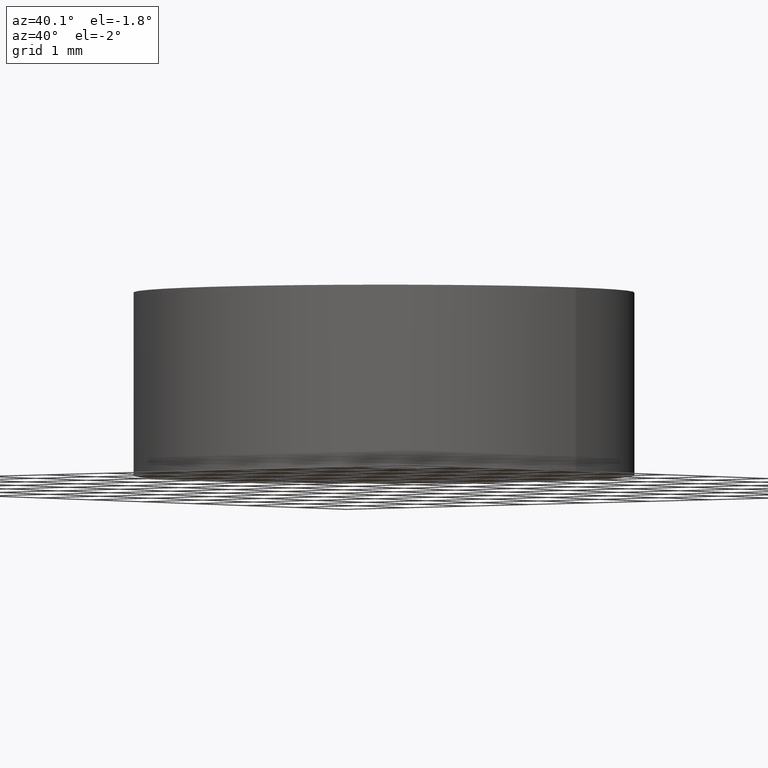
[diagram: clean part render]
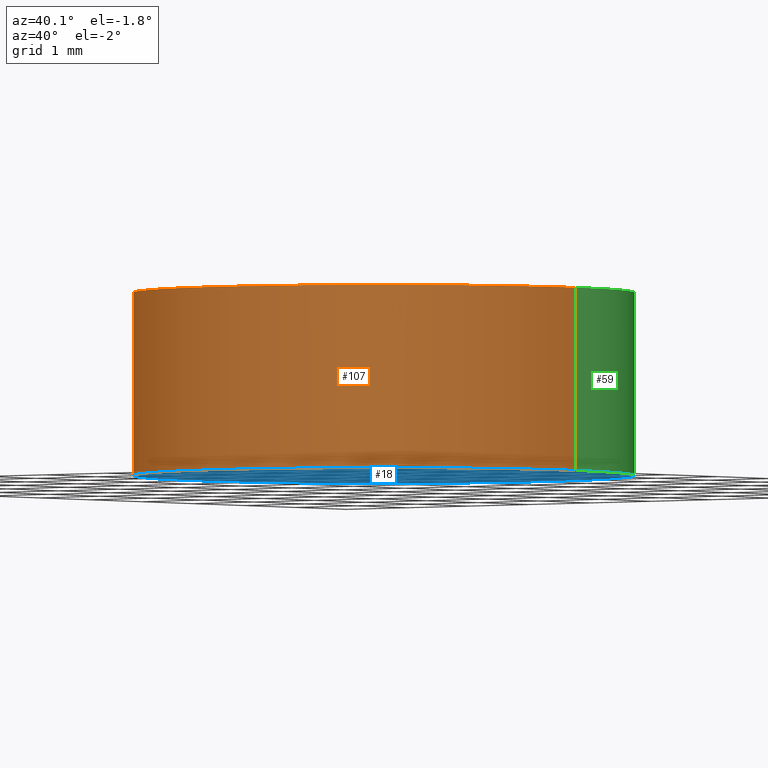
[diagram: same view with three faces highlighted in distinct colors, each labeled with its STEP entity id]
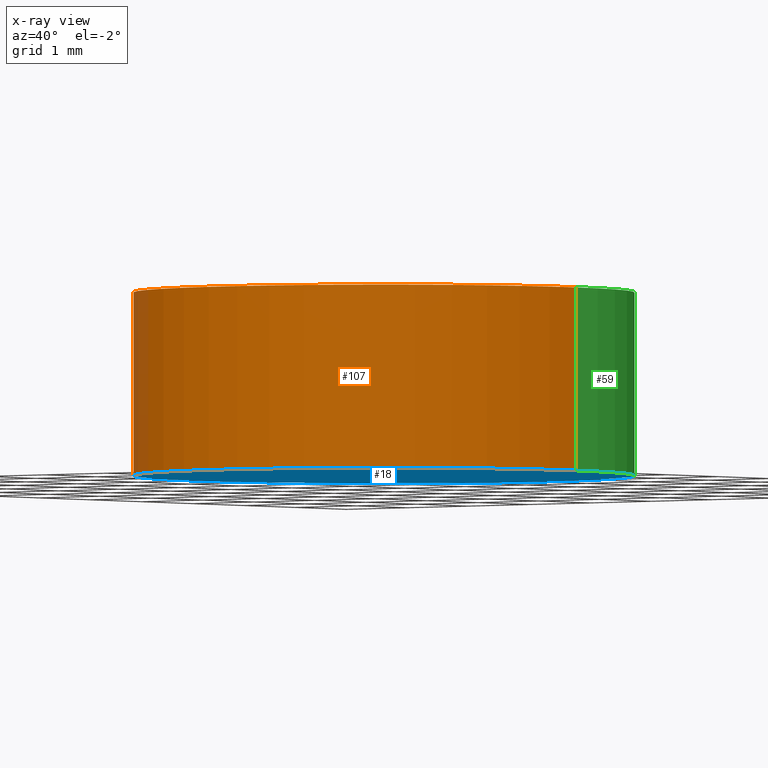
[diagram: x-ray of the same camera — body ghosted, the three highlighted faces saturated]
A machine part, auxiliary view with three faces highlighted in distinct colors.
The next image is the same camera in x-ray (body ghosted, the three faces saturated) — at least one of them is partly hidden behind the body in this view.
Their STEP definitions:

[orange] entity #107 — the highlighted cylindrical surface (partial cylindrical patch) has radius 3.15 mm, axis along (-0, -0, -1).
#1 = VERTEX_POINT ( 'NONE', #2 ) ;
#2 = CARTESIAN_POINT ( 'NONE',  ( 23.39958715517702000, 12.31264836690532000, 0.0000000000000000000 ) ) ;
#3 = DIRECTION ( 'NONE',  ( 1.000000000000000000, 0.0000000000000000000, 0.0000000000000000000 ) ) ;
#4 = DIRECTION ( 'NONE',  ( -1.000000000000000000, 0.0000000000000000000, 0.0000000000000000000 ) ) ;
#6 = FACE_OUTER_BOUND ( 'NONE', #121, .T. ) ;
#12 = EDGE_CURVE ( 'NONE', #27, #1, #74, .T. ) ;
#14 = ORIENTED_EDGE ( 'NONE', *, *, #105, .F. ) ;
#19 = EDGE_CURVE ( 'NONE', #54, #27, #53, .T. ) ;
#21 = DIRECTION ( 'NONE',  ( -0.0000000000000000000, -0.0000000000000000000, -1.000000000000000000 ) ) ;
#26 = CARTESIAN_POINT ( 'NONE',  ( 23.39958715517702000, 12.31264836690532000, 2.299999999999999800 ) ) ;
#27 = VERTEX_POINT ( 'NONE', #131 ) ;
#32 = DIRECTION ( 'NONE',  ( -0.0000000000000000000, -0.0000000000000000000, -1.000000000000000000 ) ) ;
#33 = VECTOR ( 'NONE', #21, 1000.000000000000000 ) ;
#37 = CARTESIAN_POINT ( 'NONE',  ( 20.24958715517702100, 12.31264836690532000, 2.299999999999999800 ) ) ;
#40 = ORIENTED_EDGE ( 'NONE', *, *, #119, .F. ) ;
#42 = CIRCLE ( 'NONE', #128, 3.149999999999999900 ) ;
#43 = AXIS2_PLACEMENT_3D ( 'NONE', #112, #32, #4 ) ;
#46 = CARTESIAN_POINT ( 'NONE',  ( 17.09958715517701900, 12.31264836690532000, 2.299999999999999800 ) ) ;
#53 = LINE ( 'NONE', #46, #111 ) ;
#54 = VERTEX_POINT ( 'NONE', #65 ) ;
#65 = CARTESIAN_POINT ( 'NONE',  ( 17.09958715517701900, 12.31264836690532000, 2.299999999999999800 ) ) ;
#68 = CYLINDRICAL_SURFACE ( 'NONE', #43, 3.149999999999999900 ) ;
#74 = CIRCLE ( 'NONE', #93, 3.149999999999999900 ) ;
#82 = LINE ( 'NONE', #100, #33 ) ;
#86 = CARTESIAN_POINT ( 'NONE',  ( 20.24958715517702100, 12.31264836690532000, 0.0000000000000000000 ) ) ;
#92 = ORIENTED_EDGE ( 'NONE', *, *, #19, .T. ) ;
#93 = AXIS2_PLACEMENT_3D ( 'NONE', #86, #97, #3 ) ;
#97 = DIRECTION ( 'NONE',  ( 0.0000000000000000000, 0.0000000000000000000, 1.000000000000000000 ) ) ;
#100 = CARTESIAN_POINT ( 'NONE',  ( 23.39958715517702000, 12.31264836690532000, 2.299999999999999800 ) ) ;
#105 = EDGE_CURVE ( 'NONE', #129, #1, #82, .T. ) ;
#107 = ADVANCED_FACE ( 'NONE', ( #6 ), #68, .T. ) ;
#110 = DIRECTION ( 'NONE',  ( -0.0000000000000000000, -0.0000000000000000000, -1.000000000000000000 ) ) ;
#111 = VECTOR ( 'NONE', #110, 1000.000000000000000 ) ;
#112 = CARTESIAN_POINT ( 'NONE',  ( 20.24958715517702100, 12.31264836690532000, 2.299999999999999800 ) ) ;
#119 = EDGE_CURVE ( 'NONE', #54, #129, #42, .T. ) ;
#121 = EDGE_LOOP ( 'NONE', ( #14, #40, #92, #140 ) ) ;
#125 = DIRECTION ( 'NONE',  ( 0.0000000000000000000, 0.0000000000000000000, 1.000000000000000000 ) ) ;
#128 = AXIS2_PLACEMENT_3D ( 'NONE', #37, #125, #135 ) ;
#129 = VERTEX_POINT ( 'NONE', #26 ) ;
#131 = CARTESIAN_POINT ( 'NONE',  ( 17.09958715517701900, 12.31264836690532000, 0.0000000000000000000 ) ) ;
#135 = DIRECTION ( 'NONE',  ( 1.000000000000000000, 0.0000000000000000000, 0.0000000000000000000 ) ) ;
#140 = ORIENTED_EDGE ( 'NONE', *, *, #12, .T. ) ;

[blue] entity #18 — the highlighted planar face has unit normal (0, 0, 1).
#1 = VERTEX_POINT ( 'NONE', #2 ) ;
#2 = CARTESIAN_POINT ( 'NONE',  ( 23.39958715517702000, 12.31264836690532000, 0.0000000000000000000 ) ) ;
#3 = DIRECTION ( 'NONE',  ( 1.000000000000000000, 0.0000000000000000000, 0.0000000000000000000 ) ) ;
#10 = FACE_OUTER_BOUND ( 'NONE', #80, .T. ) ;
#11 = PLANE ( 'NONE',  #91 ) ;
#12 = EDGE_CURVE ( 'NONE', #27, #1, #74, .T. ) ;
#18 = ADVANCED_FACE ( 'NONE', ( #10 ), #11, .F. ) ;
#27 = VERTEX_POINT ( 'NONE', #131 ) ;
#35 = AXIS2_PLACEMENT_3D ( 'NONE', #123, #113, #136 ) ;
#64 = CARTESIAN_POINT ( 'NONE',  ( 20.24958715517702100, 12.31264836690532000, 0.0000000000000000000 ) ) ;
#74 = CIRCLE ( 'NONE', #93, 3.149999999999999900 ) ;
#75 = ORIENTED_EDGE ( 'NONE', *, *, #12, .F. ) ;
#80 = EDGE_LOOP ( 'NONE', ( #75, #126 ) ) ;
#85 = DIRECTION ( 'NONE',  ( 1.000000000000000000, 0.0000000000000000000, -0.0000000000000000000 ) ) ;
#86 = CARTESIAN_POINT ( 'NONE',  ( 20.24958715517702100, 12.31264836690532000, 0.0000000000000000000 ) ) ;
#91 = AXIS2_PLACEMENT_3D ( 'NONE', #64, #122, #85 ) ;
#93 = AXIS2_PLACEMENT_3D ( 'NONE', #86, #97, #3 ) ;
#97 = DIRECTION ( 'NONE',  ( 0.0000000000000000000, 0.0000000000000000000, 1.000000000000000000 ) ) ;
#108 = CIRCLE ( 'NONE', #35, 3.149999999999999900 ) ;
#113 = DIRECTION ( 'NONE',  ( 0.0000000000000000000, 0.0000000000000000000, 1.000000000000000000 ) ) ;
#122 = DIRECTION ( 'NONE',  ( 0.0000000000000000000, 0.0000000000000000000, 1.000000000000000000 ) ) ;
#123 = CARTESIAN_POINT ( 'NONE',  ( 20.24958715517702100, 12.31264836690532000, 0.0000000000000000000 ) ) ;
#126 = ORIENTED_EDGE ( 'NONE', *, *, #138, .F. ) ;
#131 = CARTESIAN_POINT ( 'NONE',  ( 17.09958715517701900, 12.31264836690532000, 0.0000000000000000000 ) ) ;
#136 = DIRECTION ( 'NONE',  ( 1.000000000000000000, 0.0000000000000000000, 0.0000000000000000000 ) ) ;
#138 = EDGE_CURVE ( 'NONE', #1, #27, #108, .T. ) ;

[green] entity #59 — the highlighted cylindrical surface (partial cylindrical patch) has radius 3.15 mm, axis along (-0, -0, -1).
#1 = VERTEX_POINT ( 'NONE', #2 ) ;
#2 = CARTESIAN_POINT ( 'NONE',  ( 23.39958715517702000, 12.31264836690532000, 0.0000000000000000000 ) ) ;
#15 = FACE_OUTER_BOUND ( 'NONE', #89, .T. ) ;
#19 = EDGE_CURVE ( 'NONE', #54, #27, #53, .T. ) ;
#20 = ORIENTED_EDGE ( 'NONE', *, *, #19, .F. ) ;
#21 = DIRECTION ( 'NONE',  ( -0.0000000000000000000, -0.0000000000000000000, -1.000000000000000000 ) ) ;
#22 = CARTESIAN_POINT ( 'NONE',  ( 20.24958715517702100, 12.31264836690532000, 2.299999999999999800 ) ) ;
#23 = CIRCLE ( 'NONE', #120, 3.149999999999999900 ) ;
#26 = CARTESIAN_POINT ( 'NONE',  ( 23.39958715517702000, 12.31264836690532000, 2.299999999999999800 ) ) ;
#27 = VERTEX_POINT ( 'NONE', #131 ) ;
#29 = EDGE_CURVE ( 'NONE', #129, #54, #23, .T. ) ;
#33 = VECTOR ( 'NONE', #21, 1000.000000000000000 ) ;
#34 = DIRECTION ( 'NONE',  ( 1.000000000000000000, 0.0000000000000000000, 0.0000000000000000000 ) ) ;
#35 = AXIS2_PLACEMENT_3D ( 'NONE', #123, #113, #136 ) ;
#36 = CARTESIAN_POINT ( 'NONE',  ( 20.24958715517702100, 12.31264836690532000, 2.299999999999999800 ) ) ;
#39 = ORIENTED_EDGE ( 'NONE', *, *, #29, .F. ) ;
#45 = ORIENTED_EDGE ( 'NONE', *, *, #105, .T. ) ;
#46 = CARTESIAN_POINT ( 'NONE',  ( 17.09958715517701900, 12.31264836690532000, 2.299999999999999800 ) ) ;
#53 = LINE ( 'NONE', #46, #111 ) ;
#54 = VERTEX_POINT ( 'NONE', #65 ) ;
#59 = ADVANCED_FACE ( 'NONE', ( #15 ), #95, .T. ) ;
#60 = ORIENTED_EDGE ( 'NONE', *, *, #138, .T. ) ;
#65 = CARTESIAN_POINT ( 'NONE',  ( 17.09958715517701900, 12.31264836690532000, 2.299999999999999800 ) ) ;
#77 = DIRECTION ( 'NONE',  ( -0.0000000000000000000, -0.0000000000000000000, -1.000000000000000000 ) ) ;
#82 = LINE ( 'NONE', #100, #33 ) ;
#87 = DIRECTION ( 'NONE',  ( -1.000000000000000000, 0.0000000000000000000, 0.0000000000000000000 ) ) ;
#89 = EDGE_LOOP ( 'NONE', ( #39, #45, #60, #20 ) ) ;
#95 = CYLINDRICAL_SURFACE ( 'NONE', #114, 3.149999999999999900 ) ;
#96 = DIRECTION ( 'NONE',  ( 0.0000000000000000000, 0.0000000000000000000, 1.000000000000000000 ) ) ;
#100 = CARTESIAN_POINT ( 'NONE',  ( 23.39958715517702000, 12.31264836690532000, 2.299999999999999800 ) ) ;
#105 = EDGE_CURVE ( 'NONE', #129, #1, #82, .T. ) ;
#108 = CIRCLE ( 'NONE', #35, 3.149999999999999900 ) ;
#110 = DIRECTION ( 'NONE',  ( -0.0000000000000000000, -0.0000000000000000000, -1.000000000000000000 ) ) ;
#111 = VECTOR ( 'NONE', #110, 1000.000000000000000 ) ;
#113 = DIRECTION ( 'NONE',  ( 0.0000000000000000000, 0.0000000000000000000, 1.000000000000000000 ) ) ;
#114 = AXIS2_PLACEMENT_3D ( 'NONE', #36, #77, #87 ) ;
#120 = AXIS2_PLACEMENT_3D ( 'NONE', #22, #96, #34 ) ;
#123 = CARTESIAN_POINT ( 'NONE',  ( 20.24958715517702100, 12.31264836690532000, 0.0000000000000000000 ) ) ;
#129 = VERTEX_POINT ( 'NONE', #26 ) ;
#131 = CARTESIAN_POINT ( 'NONE',  ( 17.09958715517701900, 12.31264836690532000, 0.0000000000000000000 ) ) ;
#136 = DIRECTION ( 'NONE',  ( 1.000000000000000000, 0.0000000000000000000, 0.0000000000000000000 ) ) ;
#138 = EDGE_CURVE ( 'NONE', #1, #27, #108, .T. ) ;